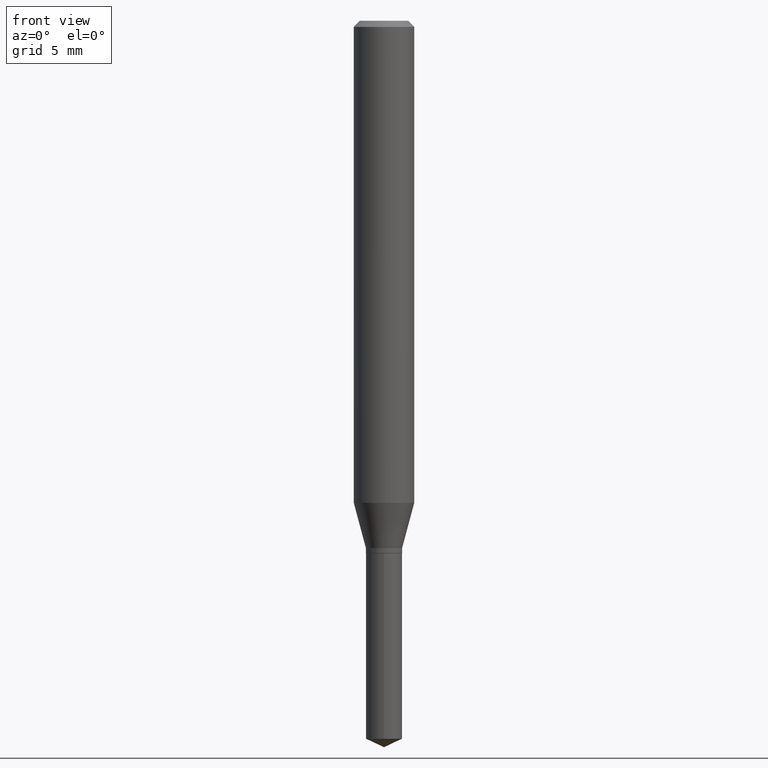
[diagram: clean part render]
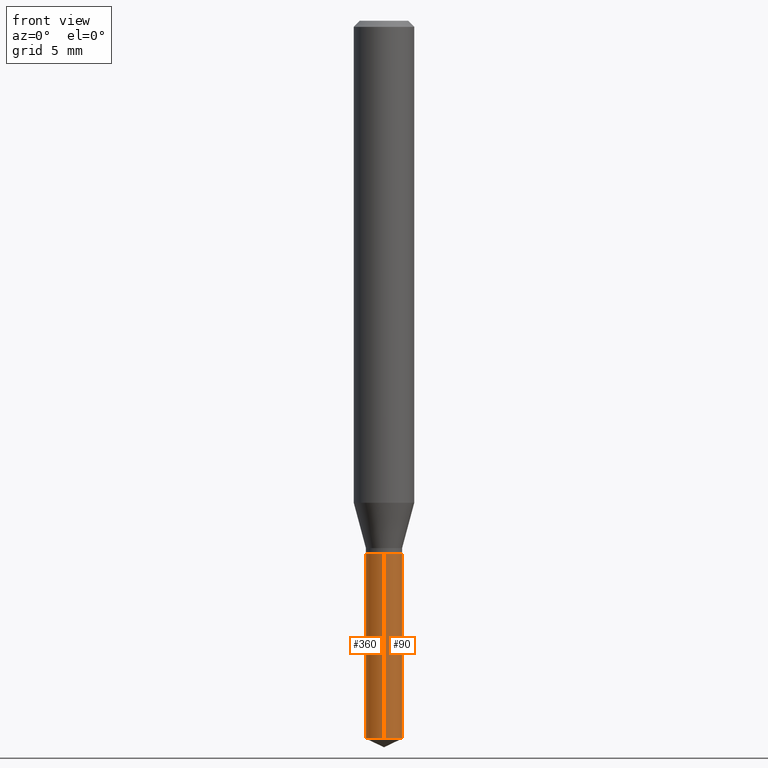
[diagram: same view with one multi-face feature highlighted, each face labeled with its STEP entity id]
A machine part, front view. The highlighted faces form ONE feature: a constant-radius fillet chain: 2 tangent blend faces with common blend radius 0.95 mm. The faces share edges in the B-rep.
Their STEP definitions:
[1] entity #90 (Cylinder):
#13 = CARTESIAN_POINT ( 'NONE',  ( -2.611628041454394310E-16, -0.03740000000000384683, -1.099999999999999867 ) ) ;
#20 = EDGE_LOOP ( 'NONE', ( #197, #281, #452, #318 ) ) ;
#36 = EDGE_CURVE ( 'NONE', #149, #122, #251, .T. ) ;
#45 = VECTOR ( 'NONE', #188, 39.37007874015748143 ) ;
#63 = CARTESIAN_POINT ( 'NONE',  ( -2.611628041454394310E-16, -0.03740000000000384683, -1.099999999999999867 ) ) ;
#69 = AXIS2_PLACEMENT_3D ( 'NONE', #155, #316, #460 ) ;
#87 = AXIS2_PLACEMENT_3D ( 'NONE', #345, #273, #344 ) ;
#90 = ADVANCED_FACE ( 'NONE', ( #302 ), #489, .T. ) ;
#94 = DIRECTION ( 'NONE',  ( -2.445399690415121530E-29, 3.491580316559632610E-15, 1.000000000000000000 ) ) ;
#106 = EDGE_CURVE ( 'NONE', #292, #131, #415, .T. ) ;
#116 = CARTESIAN_POINT ( 'NONE',  ( -2.611628041454301126E-16, -0.03740000000000517216, -1.482560093585003180 ) ) ;
#122 = VERTEX_POINT ( 'NONE', #63 ) ;
#123 = DIRECTION ( 'NONE',  ( -2.445399690415121810E-29, 3.491580316559632610E-15, 1.000000000000000000 ) ) ;
#131 = VERTEX_POINT ( 'NONE', #205 ) ;
#149 = VERTEX_POINT ( 'NONE', #116 ) ;
#154 = EDGE_CURVE ( 'NONE', #122, #131, #437, .T. ) ;
#155 = CARTESIAN_POINT ( 'NONE',  ( 2.690015686803650369E-29, -3.840629472727460101E-15, -1.100000000000000089 ) ) ;
#188 = DIRECTION ( 'NONE',  ( -2.445399690415121810E-29, 3.491580316559632610E-15, 1.000000000000000000 ) ) ;
#192 = CARTESIAN_POINT ( 'NONE',  ( 2.657429831743136776E-16, 0.03739999999999481933, -1.482560093585003180 ) ) ;
#197 = ORIENTED_EDGE ( 'NONE', *, *, #261, .T. ) ;
#205 = CARTESIAN_POINT ( 'NONE',  ( 2.657429831743138255E-16, 0.03739999999999616548, -1.100000000000000089 ) ) ;
#251 = LINE ( 'NONE', #13, #409 ) ;
#258 = DIRECTION ( 'NONE',  ( -6.982962677686265922E-15, -1.000000000000000000, 0.000000000000000000 ) ) ;
#261 = EDGE_CURVE ( 'NONE', #149, #292, #290, .T. ) ;
#273 = DIRECTION ( 'NONE',  ( -2.445399690415121530E-29, 3.491580316559632610E-15, 1.000000000000000000 ) ) ;
#281 = ORIENTED_EDGE ( 'NONE', *, *, #106, .T. ) ;
#290 = CIRCLE ( 'NONE', #404, 0.03740000000000000269 ) ;
#292 = VERTEX_POINT ( 'NONE', #192 ) ;
#302 = FACE_OUTER_BOUND ( 'NONE', #20, .T. ) ;
#316 = DIRECTION ( 'NONE',  ( -2.445399690415121530E-29, 3.491580316559632610E-15, 1.000000000000000000 ) ) ;
#318 = ORIENTED_EDGE ( 'NONE', *, *, #36, .F. ) ;
#344 = DIRECTION ( 'NONE',  ( -6.982962677686265922E-15, -1.000000000000000000, 3.652203200085913145E-15 ) ) ;
#345 = CARTESIAN_POINT ( 'NONE',  ( 2.690015686803650369E-29, -3.840629472727460101E-15, -1.100000000000000089 ) ) ;
#378 = CARTESIAN_POINT ( 'NONE',  ( 2.657429831743043592E-16, 0.03739999999999615854, -1.100000000000000089 ) ) ;
#404 = AXIS2_PLACEMENT_3D ( 'NONE', #407, #94, #258 ) ;
#407 = CARTESIAN_POINT ( 'NONE',  ( 3.625528021221597091E-29, -5.176368765390068411E-15, -1.482560093585003180 ) ) ;
#409 = VECTOR ( 'NONE', #123, 39.37007874015748143 ) ;
#415 = LINE ( 'NONE', #378, #45 ) ;
#437 = CIRCLE ( 'NONE', #69, 0.03740000000000000269 ) ;
#452 = ORIENTED_EDGE ( 'NONE', *, *, #154, .F. ) ;
#460 = DIRECTION ( 'NONE',  ( -6.982962677686265922E-15, -1.000000000000000000, 3.652203200085913145E-15 ) ) ;
#489 = CYLINDRICAL_SURFACE ( 'NONE', #87, 0.03740000000000000269 ) ;
[2] entity #360 (Cylinder):
#12 = DIRECTION ( 'NONE',  ( -6.982962677686265922E-15, -1.000000000000000000, 3.652203200085913145E-15 ) ) ;
#13 = CARTESIAN_POINT ( 'NONE',  ( -2.611628041454394310E-16, -0.03740000000000384683, -1.099999999999999867 ) ) ;
#36 = EDGE_CURVE ( 'NONE', #149, #122, #251, .T. ) ;
#45 = VECTOR ( 'NONE', #188, 39.37007874015748143 ) ;
#48 = CARTESIAN_POINT ( 'NONE',  ( 2.690015686803650369E-29, -3.840629472727460101E-15, -1.100000000000000089 ) ) ;
#52 = DIRECTION ( 'NONE',  ( -6.982962677686265922E-15, -1.000000000000000000, 3.652203200085913145E-15 ) ) ;
#56 = AXIS2_PLACEMENT_3D ( 'NONE', #48, #387, #12 ) ;
#63 = CARTESIAN_POINT ( 'NONE',  ( -2.611628041454394310E-16, -0.03740000000000384683, -1.099999999999999867 ) ) ;
#106 = EDGE_CURVE ( 'NONE', #292, #131, #415, .T. ) ;
#116 = CARTESIAN_POINT ( 'NONE',  ( -2.611628041454301126E-16, -0.03740000000000517216, -1.482560093585003180 ) ) ;
#122 = VERTEX_POINT ( 'NONE', #63 ) ;
#123 = DIRECTION ( 'NONE',  ( -2.445399690415121810E-29, 3.491580316559632610E-15, 1.000000000000000000 ) ) ;
#131 = VERTEX_POINT ( 'NONE', #205 ) ;
#149 = VERTEX_POINT ( 'NONE', #116 ) ;
#151 = CIRCLE ( 'NONE', #432, 0.03740000000000000269 ) ;
#176 = DIRECTION ( 'NONE',  ( -2.445399690415121530E-29, 3.491580316559632610E-15, 1.000000000000000000 ) ) ;
#188 = DIRECTION ( 'NONE',  ( -2.445399690415121810E-29, 3.491580316559632610E-15, 1.000000000000000000 ) ) ;
#192 = CARTESIAN_POINT ( 'NONE',  ( 2.657429831743136776E-16, 0.03739999999999481933, -1.482560093585003180 ) ) ;
#205 = CARTESIAN_POINT ( 'NONE',  ( 2.657429831743138255E-16, 0.03739999999999616548, -1.100000000000000089 ) ) ;
#207 = ORIENTED_EDGE ( 'NONE', *, *, #36, .T. ) ;
#240 = ORIENTED_EDGE ( 'NONE', *, *, #312, .F. ) ;
#243 = CYLINDRICAL_SURFACE ( 'NONE', #56, 0.03740000000000000269 ) ;
#250 = DIRECTION ( 'NONE',  ( -2.445399690415121530E-29, 3.491580316559632610E-15, 1.000000000000000000 ) ) ;
#251 = LINE ( 'NONE', #13, #409 ) ;
#267 = CARTESIAN_POINT ( 'NONE',  ( 3.625528021221597091E-29, -5.176368765390068411E-15, -1.482560093585003180 ) ) ;
#292 = VERTEX_POINT ( 'NONE', #192 ) ;
#312 = EDGE_CURVE ( 'NONE', #131, #122, #486, .T. ) ;
#360 = ADVANCED_FACE ( 'NONE', ( #424 ), #243, .T. ) ;
#378 = CARTESIAN_POINT ( 'NONE',  ( 2.657429831743043592E-16, 0.03739999999999615854, -1.100000000000000089 ) ) ;
#382 = ORIENTED_EDGE ( 'NONE', *, *, #472, .T. ) ;
#387 = DIRECTION ( 'NONE',  ( -2.445399690415121530E-29, 3.491580316559632610E-15, 1.000000000000000000 ) ) ;
#409 = VECTOR ( 'NONE', #123, 39.37007874015748143 ) ;
#415 = LINE ( 'NONE', #378, #45 ) ;
#421 = EDGE_LOOP ( 'NONE', ( #465, #382, #207, #240 ) ) ;
#424 = FACE_OUTER_BOUND ( 'NONE', #421, .T. ) ;
#428 = CARTESIAN_POINT ( 'NONE',  ( 2.690015686803650369E-29, -3.840629472727460101E-15, -1.100000000000000089 ) ) ;
#432 = AXIS2_PLACEMENT_3D ( 'NONE', #267, #176, #447 ) ;
#447 = DIRECTION ( 'NONE',  ( -6.982962677686265922E-15, -1.000000000000000000, 0.000000000000000000 ) ) ;
#463 = AXIS2_PLACEMENT_3D ( 'NONE', #428, #250, #52 ) ;
#465 = ORIENTED_EDGE ( 'NONE', *, *, #106, .F. ) ;
#472 = EDGE_CURVE ( 'NONE', #292, #149, #151, .T. ) ;
#486 = CIRCLE ( 'NONE', #463, 0.03740000000000000269 ) ;